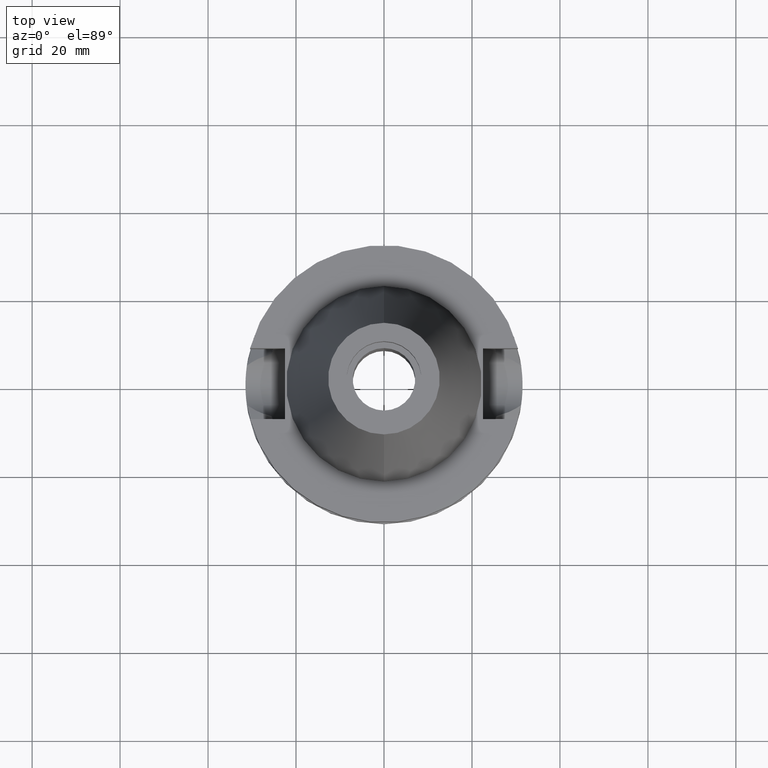
[diagram: clean part render]
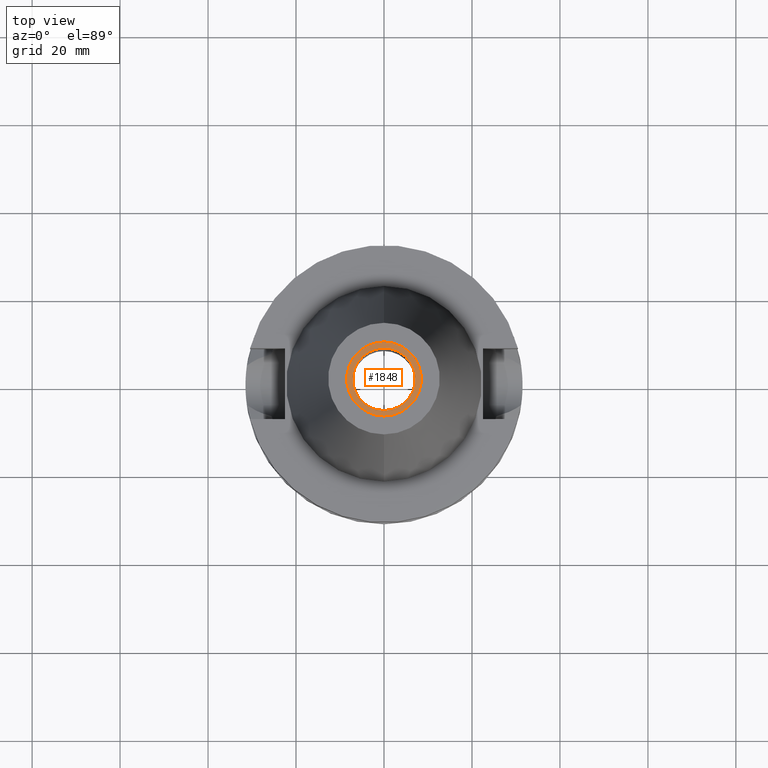
[diagram: same view with one face highlighted and labeled with its STEP entity id]
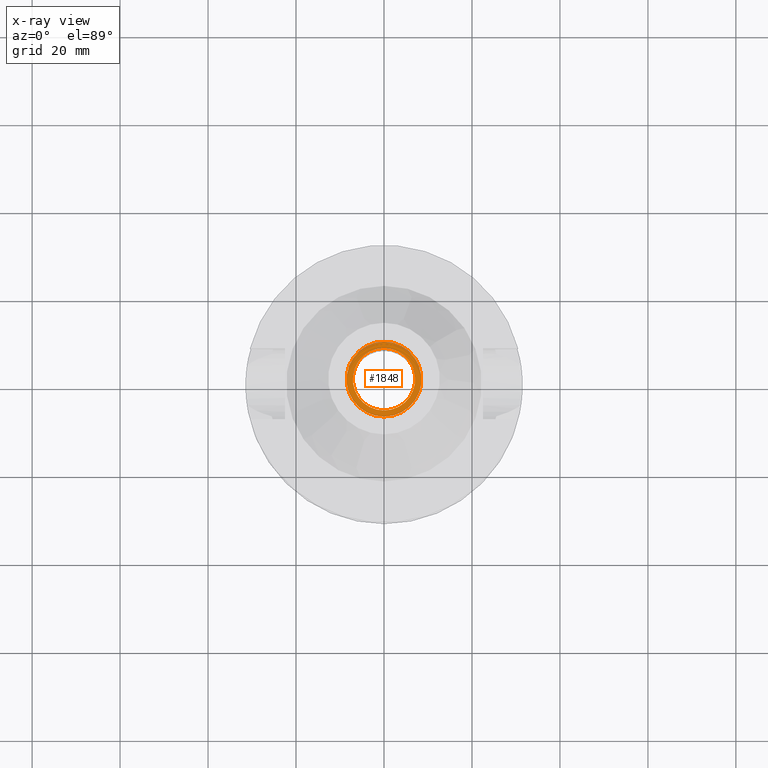
[diagram: x-ray of the same camera — body ghosted, the highlighted face saturated]
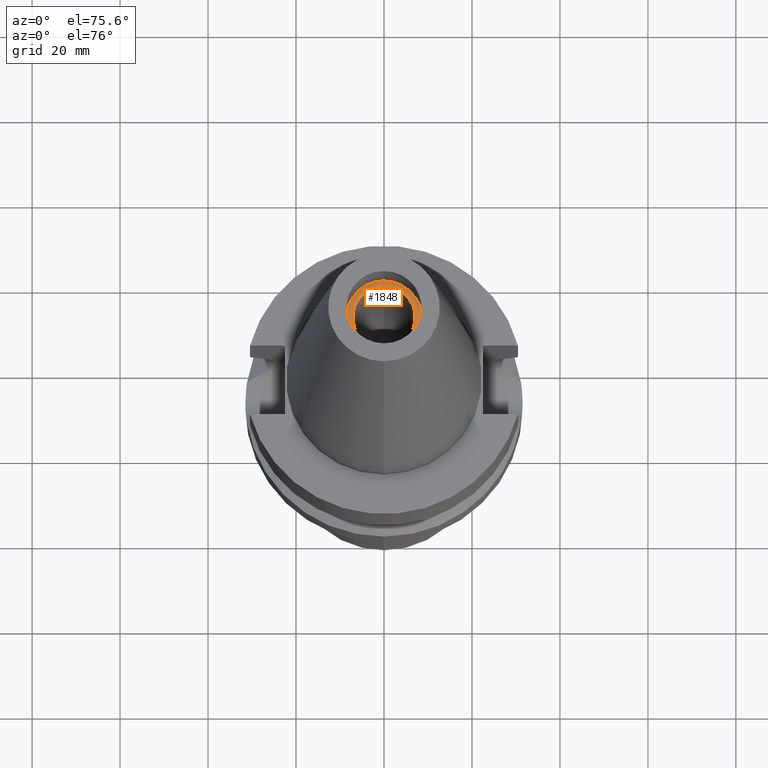
[diagram: same view with one face highlighted and labeled with its STEP entity id]
A machine part, top view. The second image highlights one B-rep face of the part: STEP entity #1848.
The next image is the same camera in x-ray: the body ghosted, the highlighted face saturated — about 0% of this face is hidden behind the body in this view.
A second angle (auxiliary view) of the same face is appended — the face is thin or edge-on in the first view.
In plain terms, the highlighted planar face has unit normal (0, 0, -1).
Its self-contained STEP definition (entity closure, byte-faithful):
#72 = FACE_OUTER_BOUND ( 'NONE', #2256, .T. ) ;
#181 = EDGE_LOOP ( 'NONE', ( #1951, #1006 ) ) ;
#267 = DIRECTION ( 'NONE',  ( 0.0000000000000000000, 1.000000000000000000, 0.0000000000000000000 ) ) ;
#436 = CIRCLE ( 'NONE', #2149, 8.500000000000000000 ) ;
#449 = AXIS2_PLACEMENT_3D ( 'NONE', #2603, #493, #776 ) ;
#493 = DIRECTION ( 'NONE',  ( 0.0000000000000000000, 0.0000000000000000000, -1.000000000000000000 ) ) ;
#517 = CARTESIAN_POINT ( 'NONE',  ( 0.0000000000000000000, -7.100000000000000533, 56.39999999999999858 ) ) ;
#529 = EDGE_CURVE ( 'NONE', #2434, #2439, #1416, .T. ) ;
#635 = EDGE_CURVE ( 'NONE', #2825, #2261, #436, .T. ) ;
#701 = CIRCLE ( 'NONE', #1729, 8.500000000000000000 ) ;
#724 = CARTESIAN_POINT ( 'NONE',  ( 0.0000000000000000000, 7.100000000000000533, 56.39999999999999858 ) ) ;
#732 = PLANE ( 'NONE',  #449 ) ;
#776 = DIRECTION ( 'NONE',  ( 0.0000000000000000000, -1.000000000000000000, 0.0000000000000000000 ) ) ;
#899 = CARTESIAN_POINT ( 'NONE',  ( 0.0000000000000000000, 8.500000000000000000, 56.39999999999999858 ) ) ;
#943 = AXIS2_PLACEMENT_3D ( 'NONE', #1440, #950, #267 ) ;
#950 = DIRECTION ( 'NONE',  ( 0.0000000000000000000, 0.0000000000000000000, 1.000000000000000000 ) ) ;
#1006 = ORIENTED_EDGE ( 'NONE', *, *, #529, .F. ) ;
#1180 = ORIENTED_EDGE ( 'NONE', *, *, #2615, .F. ) ;
#1285 = CIRCLE ( 'NONE', #943, 7.100000000000000533 ) ;
#1366 = DIRECTION ( 'NONE',  ( 0.0000000000000000000, -1.000000000000000000, 0.0000000000000000000 ) ) ;
#1416 = CIRCLE ( 'NONE', #1662, 7.100000000000000533 ) ;
#1440 = CARTESIAN_POINT ( 'NONE',  ( 0.0000000000000000000, 0.0000000000000000000, 56.39999999999999858 ) ) ;
#1622 = DIRECTION ( 'NONE',  ( 0.0000000000000000000, 0.0000000000000000000, -1.000000000000000000 ) ) ;
#1662 = AXIS2_PLACEMENT_3D ( 'NONE', #2257, #2533, #1366 ) ;
#1718 = DIRECTION ( 'NONE',  ( 0.0000000000000000000, 1.000000000000000000, 0.0000000000000000000 ) ) ;
#1729 = AXIS2_PLACEMENT_3D ( 'NONE', #2689, #1734, #1718 ) ;
#1734 = DIRECTION ( 'NONE',  ( 0.0000000000000000000, 0.0000000000000000000, -1.000000000000000000 ) ) ;
#1762 = EDGE_CURVE ( 'NONE', #2439, #2434, #1285, .T. ) ;
#1848 = ADVANCED_FACE ( 'NONE', ( #72, #2832 ), #732, .F. ) ;
#1893 = CARTESIAN_POINT ( 'NONE',  ( 0.0000000000000000000, 0.0000000000000000000, 56.39999999999999858 ) ) ;
#1951 = ORIENTED_EDGE ( 'NONE', *, *, #1762, .F. ) ;
#2075 = CARTESIAN_POINT ( 'NONE',  ( 0.0000000000000000000, -8.500000000000000000, 56.39999999999999858 ) ) ;
#2149 = AXIS2_PLACEMENT_3D ( 'NONE', #1893, #1622, #2831 ) ;
#2256 = EDGE_LOOP ( 'NONE', ( #1180, #3018 ) ) ;
#2257 = CARTESIAN_POINT ( 'NONE',  ( 0.0000000000000000000, 0.0000000000000000000, 56.39999999999999858 ) ) ;
#2261 = VERTEX_POINT ( 'NONE', #899 ) ;
#2434 = VERTEX_POINT ( 'NONE', #517 ) ;
#2439 = VERTEX_POINT ( 'NONE', #724 ) ;
#2533 = DIRECTION ( 'NONE',  ( 0.0000000000000000000, 0.0000000000000000000, 1.000000000000000000 ) ) ;
#2603 = CARTESIAN_POINT ( 'NONE',  ( 0.0000000000000000000, 0.0000000000000000000, 56.39999999999999858 ) ) ;
#2615 = EDGE_CURVE ( 'NONE', #2261, #2825, #701, .T. ) ;
#2689 = CARTESIAN_POINT ( 'NONE',  ( 0.0000000000000000000, 0.0000000000000000000, 56.39999999999999858 ) ) ;
#2825 = VERTEX_POINT ( 'NONE', #2075 ) ;
#2831 = DIRECTION ( 'NONE',  ( 0.0000000000000000000, -1.000000000000000000, 0.0000000000000000000 ) ) ;
#2832 = FACE_BOUND ( 'NONE', #181, .T. ) ;
#3018 = ORIENTED_EDGE ( 'NONE', *, *, #635, .F. ) ;